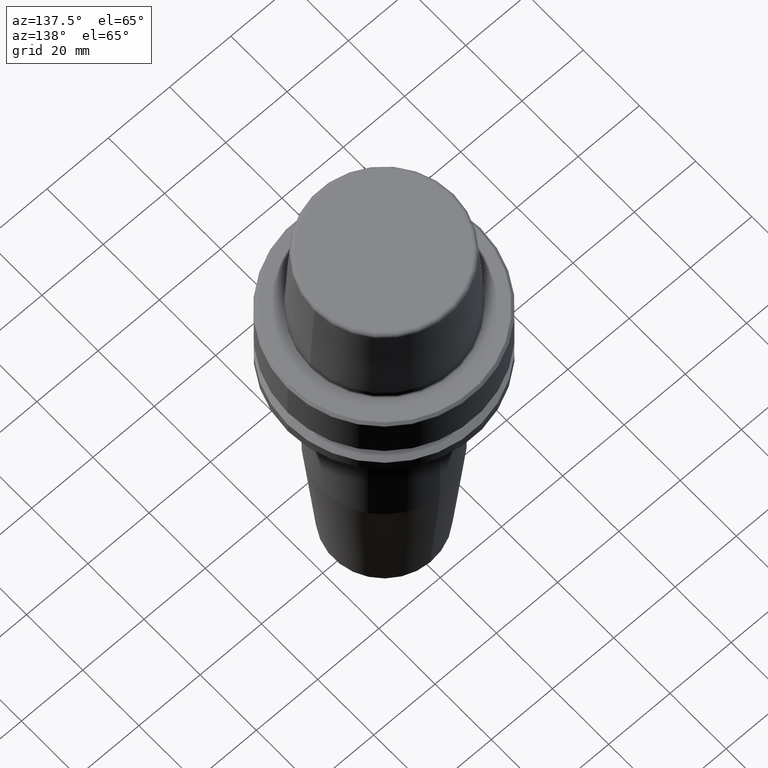
[diagram: clean part render]
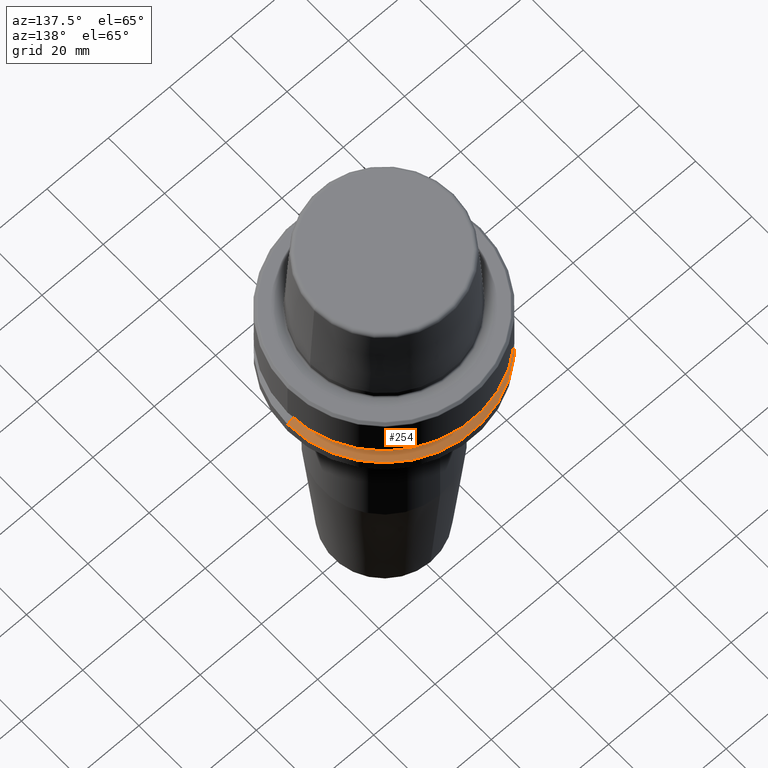
[diagram: same view with one face highlighted and labeled with its STEP entity id]
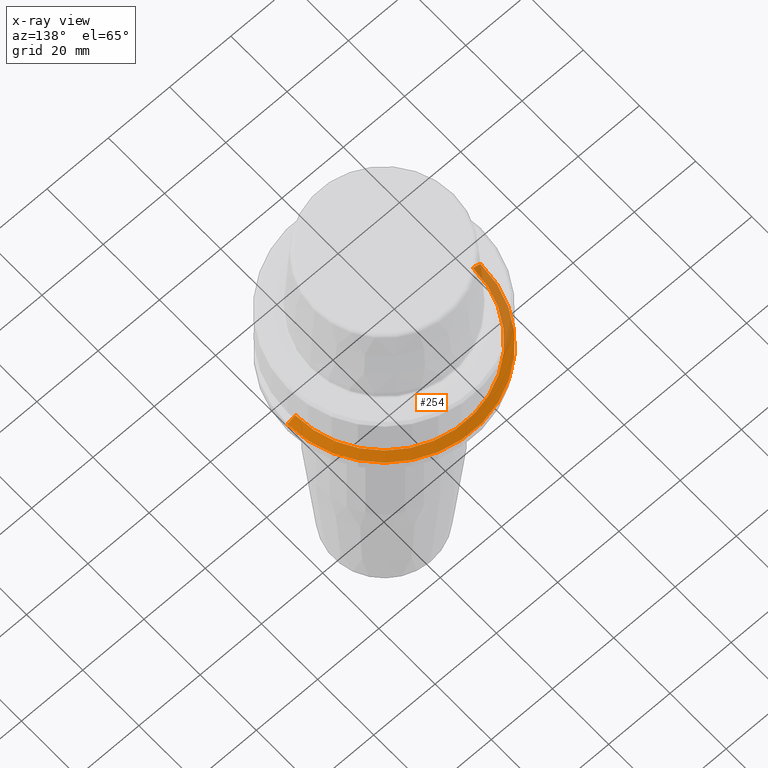
[diagram: x-ray of the same camera — body ghosted, the highlighted face saturated]
A machine part, auxiliary view. The second image highlights one B-rep face of the part: STEP entity #254.
The next image is the same camera in x-ray: the body ghosted, the highlighted face saturated — about 19% of this face is hidden behind the body in this view.
In plain terms, the highlighted conical surface has half-angle 60 deg.
Its self-contained STEP definition (entity closure, byte-faithful):
#16 = VERTEX_POINT ( 'NONE', #753 ) ;
#37 = DIRECTION ( 'NONE',  ( 0.8660254037844410400, 1.060575238724909700E-016, -0.4999999999999958400 ) ) ;
#45 = EDGE_CURVE ( 'NONE', #443, #210, #857, .T. ) ;
#46 = ORIENTED_EDGE ( 'NONE', *, *, #45, .F. ) ;
#82 = DIRECTION ( 'NONE',  ( -0.0000000000000000000, -0.0000000000000000000, 1.000000000000000000 ) ) ;
#198 = CARTESIAN_POINT ( 'NONE',  ( -31.50000000000000000, 0.0000000000000000000, -21.37749907475931700 ) ) ;
#210 = VERTEX_POINT ( 'NONE', #1084 ) ;
#235 = ORIENTED_EDGE ( 'NONE', *, *, #520, .F. ) ;
#251 = DIRECTION ( 'NONE',  ( -1.000000000000000000, 0.0000000000000000000, 0.0000000000000000000 ) ) ;
#254 = ADVANCED_FACE ( 'NONE', ( #1016 ), #417, .T. ) ;
#259 = CARTESIAN_POINT ( 'NONE',  ( -28.94089653438085100, 0.0000000000000000000, -19.90000000000001600 ) ) ;
#270 = AXIS2_PLACEMENT_3D ( 'NONE', #463, #560, #251 ) ;
#356 = DIRECTION ( 'NONE',  ( 1.000000000000000000, 0.0000000000000000000, 0.0000000000000000000 ) ) ;
#375 = VECTOR ( 'NONE', #471, 1000.000000000000100 ) ;
#389 = VECTOR ( 'NONE', #37, 1000.000000000000100 ) ;
#417 = CONICAL_SURFACE ( 'NONE', #270, 31.50000000000000000, 1.047197551196602500 ) ;
#428 = AXIS2_PLACEMENT_3D ( 'NONE', #431, #1124, #524 ) ;
#430 = AXIS2_PLACEMENT_3D ( 'NONE', #837, #82, #356 ) ;
#431 = CARTESIAN_POINT ( 'NONE',  ( 0.0000000000000000000, 0.0000000000000000000, -21.37749907475931700 ) ) ;
#443 = VERTEX_POINT ( 'NONE', #259 ) ;
#463 = CARTESIAN_POINT ( 'NONE',  ( 0.0000000000000000000, 0.0000000000000000000, -21.37749907475931700 ) ) ;
#471 = DIRECTION ( 'NONE',  ( -0.8660254037844410400, 0.0000000000000000000, -0.4999999999999958400 ) ) ;
#516 = CIRCLE ( 'NONE', #428, 31.50000000000000000 ) ;
#520 = EDGE_CURVE ( 'NONE', #711, #443, #733, .T. ) ;
#524 = DIRECTION ( 'NONE',  ( 1.000000000000000000, 0.0000000000000000000, 0.0000000000000000000 ) ) ;
#560 = DIRECTION ( 'NONE',  ( 0.0000000000000000000, 0.0000000000000000000, -1.000000000000000000 ) ) ;
#584 = CARTESIAN_POINT ( 'NONE',  ( 31.50000000000000000, 3.857637417314162700E-015, -21.37749907475931700 ) ) ;
#689 = ORIENTED_EDGE ( 'NONE', *, *, #828, .T. ) ;
#711 = VERTEX_POINT ( 'NONE', #1012 ) ;
#733 = CIRCLE ( 'NONE', #430, 28.94089653438085100 ) ;
#753 = CARTESIAN_POINT ( 'NONE',  ( 31.50000000000000000, 0.0000000000000000000, -21.37749907475931700 ) ) ;
#828 = EDGE_CURVE ( 'NONE', #711, #16, #872, .T. ) ;
#837 = CARTESIAN_POINT ( 'NONE',  ( 0.0000000000000000000, 0.0000000000000000000, -19.90000000000001600 ) ) ;
#857 = LINE ( 'NONE', #198, #375 ) ;
#872 = LINE ( 'NONE', #584, #389 ) ;
#1012 = CARTESIAN_POINT ( 'NONE',  ( 28.94089653438085100, 3.700937523921292900E-015, -19.90000000000001600 ) ) ;
#1016 = FACE_OUTER_BOUND ( 'NONE', #1236, .T. ) ;
#1030 = EDGE_CURVE ( 'NONE', #16, #210, #516, .T. ) ;
#1057 = ORIENTED_EDGE ( 'NONE', *, *, #1030, .T. ) ;
#1084 = CARTESIAN_POINT ( 'NONE',  ( -31.50000000000000000, 3.857637417314162700E-015, -21.37749907475931700 ) ) ;
#1124 = DIRECTION ( 'NONE',  ( -0.0000000000000000000, -0.0000000000000000000, 1.000000000000000000 ) ) ;
#1236 = EDGE_LOOP ( 'NONE', ( #235, #689, #1057, #46 ) ) ;